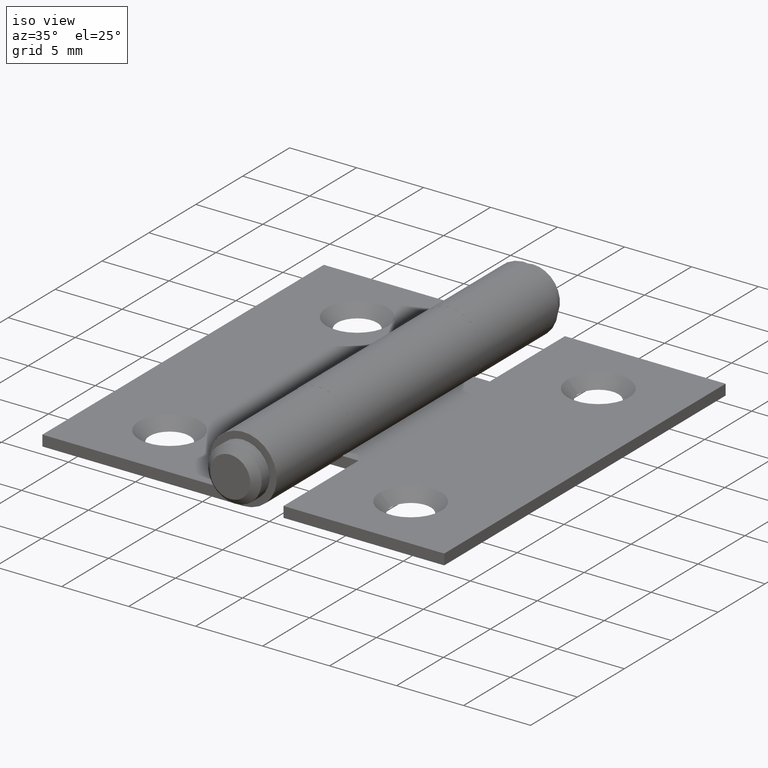
[diagram: clean part render]
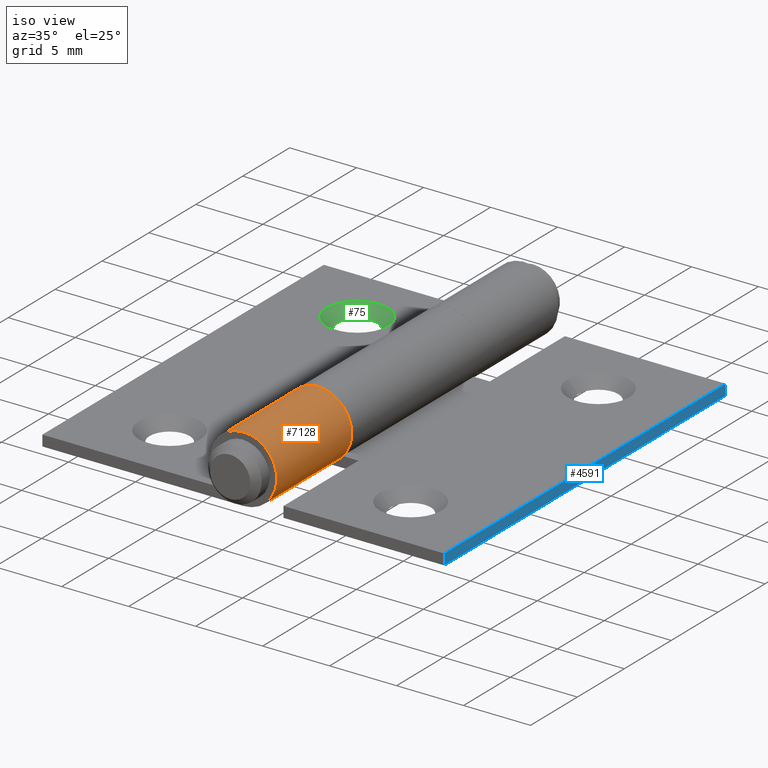
[diagram: same view with three faces highlighted in distinct colors, each labeled with its STEP entity id]
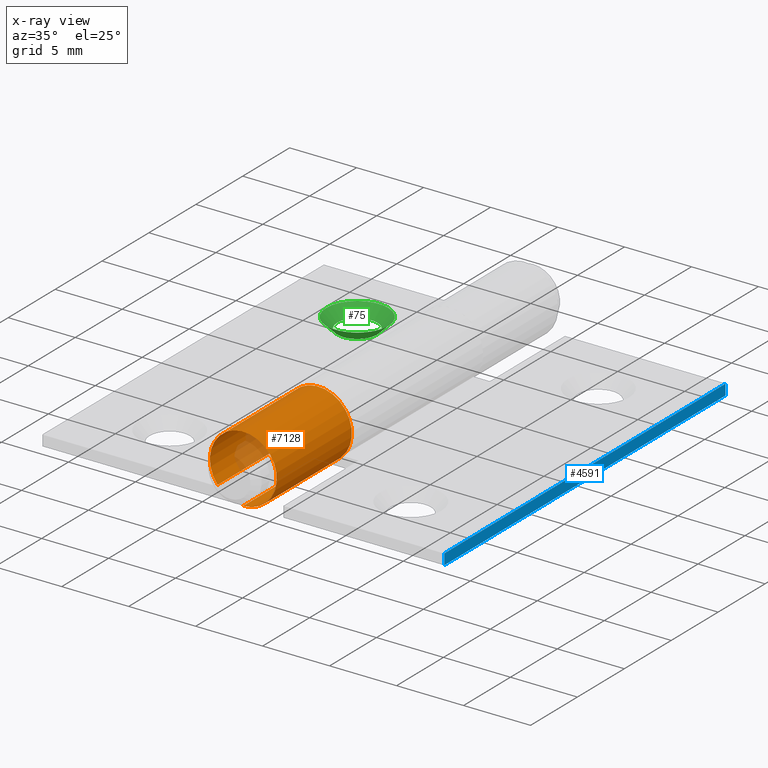
[diagram: x-ray of the same camera — body ghosted, the three highlighted faces saturated]
A machine part, iso view with three faces highlighted in distinct colors.
The next image is the same camera in x-ray (body ghosted, the three faces saturated) — at least one of them is partly hidden behind the body in this view.
Their STEP definitions:

[orange] entity #7128 — the highlighted cylindrical surface (partial cylindrical patch) has radius 2.5 mm, axis along (-0, -1, -0).
#368 = DIRECTION ( 'NONE',  ( 0.000000000000000000, 0.000000000000000000, -1.000000000000000000 ) ) ;
#475 = VERTEX_POINT ( 'NONE', #3328 ) ;
#676 = EDGE_CURVE ( 'NONE', #475, #9387, #7936, .T. ) ;
#783 = CARTESIAN_POINT ( 'NONE',  ( -4.420937271229854026, 15.00000000000000000, 0.9000000000000002442 ) ) ;
#1014 = DIRECTION ( 'NONE',  ( 0.000000000000000000, 1.000000000000000000, -0.000000000000000000 ) ) ;
#1357 = EDGE_LOOP ( 'NONE', ( #1628, #8893, #6601, #2745 ) ) ;
#1628 = ORIENTED_EDGE ( 'NONE', *, *, #9542, .F. ) ;
#2055 = AXIS2_PLACEMENT_3D ( 'NONE', #6397, #7106, #7890 ) ;
#2457 = EDGE_CURVE ( 'NONE', #3498, #475, #6518, .T. ) ;
#2741 = AXIS2_PLACEMENT_3D ( 'NONE', #5476, #1014, #6985 ) ;
#2745 = ORIENTED_EDGE ( 'NONE', *, *, #7008, .T. ) ;
#3066 = DIRECTION ( 'NONE',  ( -0.000000000000000000, -1.000000000000000000, -0.000000000000000000 ) ) ;
#3328 = CARTESIAN_POINT ( 'NONE',  ( -4.420937271229854026, -6.999999999999999112, 0.9000000000000003553 ) ) ;
#3498 = VERTEX_POINT ( 'NONE', #4521 ) ;
#3527 = CYLINDRICAL_SURFACE ( 'NONE', #2055, 2.499999999999999556 ) ;
#3739 = VECTOR ( 'NONE', #9081, 1000.000000000000000 ) ;
#3969 = VERTEX_POINT ( 'NONE', #9036 ) ;
#4521 = CARTESIAN_POINT ( 'NONE',  ( -2.499999999999999556, -7.000000000000000000, 3.252606517456513302E-16 ) ) ;
#4888 = CARTESIAN_POINT ( 'NONE',  ( -4.420937271229854026, -15.00000000000000000, 0.9000000000000002442 ) ) ;
#5242 = CARTESIAN_POINT ( 'NONE',  ( -2.500000000000000000, 15.00000000000000000, 1.084202172485504434E-16 ) ) ;
#5476 = CARTESIAN_POINT ( 'NONE',  ( -2.500000000000000000, -15.00000000000000000, 2.500000000000000000 ) ) ;
#6397 = CARTESIAN_POINT ( 'NONE',  ( -2.500000000000000000, 15.00000000000000000, 2.500000000000000000 ) ) ;
#6518 = CIRCLE ( 'NONE', #6599, 2.499999999999999556 ) ;
#6599 = AXIS2_PLACEMENT_3D ( 'NONE', #7098, #9239, #368 ) ;
#6601 = ORIENTED_EDGE ( 'NONE', *, *, #676, .T. ) ;
#6985 = DIRECTION ( 'NONE',  ( 0.000000000000000000, 0.000000000000000000, -1.000000000000000000 ) ) ;
#7008 = EDGE_CURVE ( 'NONE', #9387, #3969, #9498, .T. ) ;
#7098 = CARTESIAN_POINT ( 'NONE',  ( -2.500000000000000000, -6.999999999999999112, 2.500000000000000000 ) ) ;
#7106 = DIRECTION ( 'NONE',  ( -0.000000000000000000, -1.000000000000000000, -0.000000000000000000 ) ) ;
#7108 = LINE ( 'NONE', #5242, #8625 ) ;
#7128 = ADVANCED_FACE ( 'NONE', ( #8791 ), #3527, .T. ) ;
#7890 = DIRECTION ( 'NONE',  ( 0.000000000000000000, 0.000000000000000000, -1.000000000000000000 ) ) ;
#7936 = LINE ( 'NONE', #783, #3739 ) ;
#8625 = VECTOR ( 'NONE', #3066, 1000.000000000000000 ) ;
#8791 = FACE_OUTER_BOUND ( 'NONE', #1357, .T. ) ;
#8893 = ORIENTED_EDGE ( 'NONE', *, *, #2457, .T. ) ;
#9036 = CARTESIAN_POINT ( 'NONE',  ( -2.500000000000000000, -15.00000000000000000, 1.084202172485504434E-16 ) ) ;
#9081 = DIRECTION ( 'NONE',  ( -0.000000000000000000, -1.000000000000000000, -0.000000000000000000 ) ) ;
#9239 = DIRECTION ( 'NONE',  ( 0.000000000000000000, -1.000000000000000000, 0.000000000000000000 ) ) ;
#9387 = VERTEX_POINT ( 'NONE', #4888 ) ;
#9498 = CIRCLE ( 'NONE', #2741, 2.499999999999999556 ) ;
#9542 = EDGE_CURVE ( 'NONE', #3498, #3969, #7108, .T. ) ;

[blue] entity #4591 — the highlighted planar face has unit normal (-1, 0, 0).
#122 = CARTESIAN_POINT ( 'NONE',  ( -17.49999999999999645, 15.00000000000000000, 0.8000000000000020428 ) ) ;
#482 = CARTESIAN_POINT ( 'NONE',  ( -17.49999999999999645, 15.00000000000000000, 1.951563910473907981E-15 ) ) ;
#791 = EDGE_CURVE ( 'NONE', #3048, #6592, #7697, .T. ) ;
#1268 = DIRECTION ( 'NONE',  ( 0.000000000000000000, 0.000000000000000000, -1.000000000000000000 ) ) ;
#1419 = EDGE_CURVE ( 'NONE', #8421, #3048, #3255, .T. ) ;
#1477 = AXIS2_PLACEMENT_3D ( 'NONE', #5736, #2058, #1268 ) ;
#1518 = EDGE_LOOP ( 'NONE', ( #3321, #3870, #5622, #6862 ) ) ;
#1930 = PLANE ( 'NONE',  #1477 ) ;
#2058 = DIRECTION ( 'NONE',  ( 1.000000000000000000, -0.000000000000000000, 0.000000000000000000 ) ) ;
#2099 = VECTOR ( 'NONE', #4584, 1000.000000000000000 ) ;
#2796 = VECTOR ( 'NONE', #9177, 1000.000000000000000 ) ;
#3048 = VERTEX_POINT ( 'NONE', #122 ) ;
#3255 = LINE ( 'NONE', #7687, #2796 ) ;
#3321 = ORIENTED_EDGE ( 'NONE', *, *, #8711, .T. ) ;
#3852 = CARTESIAN_POINT ( 'NONE',  ( -17.49999999999999645, 15.00000000000000000, 0.8000000000000020428 ) ) ;
#3870 = ORIENTED_EDGE ( 'NONE', *, *, #791, .F. ) ;
#4232 = LINE ( 'NONE', #482, #8674 ) ;
#4395 = VERTEX_POINT ( 'NONE', #5539 ) ;
#4429 = VECTOR ( 'NONE', #7165, 1000.000000000000000 ) ;
#4584 = DIRECTION ( 'NONE',  ( -0.000000000000000000, -1.000000000000000000, -0.000000000000000000 ) ) ;
#4591 = ADVANCED_FACE ( 'NONE', ( #6835 ), #1930, .F. ) ;
#5539 = CARTESIAN_POINT ( 'NONE',  ( -17.49999999999999645, -15.00000000000000000, 1.951563910473907981E-15 ) ) ;
#5622 = ORIENTED_EDGE ( 'NONE', *, *, #1419, .F. ) ;
#5684 = CARTESIAN_POINT ( 'NONE',  ( -17.49999999999999645, -15.00000000000000000, 0.8000000000000020428 ) ) ;
#5736 = CARTESIAN_POINT ( 'NONE',  ( -17.49999999999999645, 15.00000000000000000, 0.8000000000000020428 ) ) ;
#6592 = VERTEX_POINT ( 'NONE', #5684 ) ;
#6687 = EDGE_CURVE ( 'NONE', #8421, #4395, #4232, .T. ) ;
#6835 = FACE_OUTER_BOUND ( 'NONE', #1518, .T. ) ;
#6862 = ORIENTED_EDGE ( 'NONE', *, *, #6687, .T. ) ;
#7165 = DIRECTION ( 'NONE',  ( -0.000000000000000000, -0.000000000000000000, 1.000000000000000000 ) ) ;
#7241 = DIRECTION ( 'NONE',  ( -0.000000000000000000, -1.000000000000000000, -0.000000000000000000 ) ) ;
#7591 = LINE ( 'NONE', #9472, #4429 ) ;
#7687 = CARTESIAN_POINT ( 'NONE',  ( -17.49999999999999645, 15.00000000000000000, 0.8000000000000020428 ) ) ;
#7697 = LINE ( 'NONE', #3852, #2099 ) ;
#8421 = VERTEX_POINT ( 'NONE', #8827 ) ;
#8674 = VECTOR ( 'NONE', #7241, 1000.000000000000000 ) ;
#8711 = EDGE_CURVE ( 'NONE', #4395, #6592, #7591, .T. ) ;
#8827 = CARTESIAN_POINT ( 'NONE',  ( -17.49999999999999645, 15.00000000000000000, 1.951563910473907981E-15 ) ) ;
#9177 = DIRECTION ( 'NONE',  ( -0.000000000000000000, -0.000000000000000000, 1.000000000000000000 ) ) ;
#9472 = CARTESIAN_POINT ( 'NONE',  ( -17.49999999999999645, -15.00000000000000000, 0.8000000000000020428 ) ) ;

[green] entity #75 — the highlighted conical surface has half-angle 45 deg.
#75 = ADVANCED_FACE ( 'NONE', ( #1649, #5727 ), #3500, .F. ) ;
#110 = CARTESIAN_POINT ( 'NONE',  ( -11.50000000000000533, 9.999999999999998224, 0.8000000000000012657 ) ) ;
#135 = CARTESIAN_POINT ( 'NONE',  ( -13.80000000000000604, 9.999999999999998224, 0.8000000000000015987 ) ) ;
#1356 = DIRECTION ( 'NONE',  ( 1.000000000000000000, 0.000000000000000000, 0.000000000000000000 ) ) ;
#1390 = VERTEX_POINT ( 'NONE', #135 ) ;
#1601 = CARTESIAN_POINT ( 'NONE',  ( -11.50000000000000533, 9.999999999999998224, 1.084202172485504434E-16 ) ) ;
#1649 = FACE_OUTER_BOUND ( 'NONE', #3893, .T. ) ;
#1916 = CIRCLE ( 'NONE', #6622, 2.300000000000001599 ) ;
#2364 = AXIS2_PLACEMENT_3D ( 'NONE', #5724, #9558, #1356 ) ;
#3500 = CONICAL_SURFACE ( 'NONE', #2364, 1.499999999999999556, 0.7853981633974482790 ) ;
#3625 = CIRCLE ( 'NONE', #7896, 1.499999999999999556 ) ;
#3893 = EDGE_LOOP ( 'NONE', ( #4784 ) ) ;
#4563 = ORIENTED_EDGE ( 'NONE', *, *, #9090, .F. ) ;
#4784 = ORIENTED_EDGE ( 'NONE', *, *, #5472, .F. ) ;
#5334 = CARTESIAN_POINT ( 'NONE',  ( -10.00000000000000533, 9.999999999999998224, 1.084202172485504434E-16 ) ) ;
#5338 = DIRECTION ( 'NONE',  ( -1.000000000000000000, 0.000000000000000000, 1.414176746720222167E-16 ) ) ;
#5472 = EDGE_CURVE ( 'NONE', #1390, #1390, #1916, .T. ) ;
#5724 = CARTESIAN_POINT ( 'NONE',  ( -11.50000000000000533, 9.999999999999998224, -1.713039432527096217E-15 ) ) ;
#5727 = FACE_BOUND ( 'NONE', #5983, .T. ) ;
#5975 = DIRECTION ( 'NONE',  ( 0.000000000000000000, 0.000000000000000000, 1.000000000000000000 ) ) ;
#5983 = EDGE_LOOP ( 'NONE', ( #4563 ) ) ;
#6622 = AXIS2_PLACEMENT_3D ( 'NONE', #110, #9015, #5338 ) ;
#7561 = DIRECTION ( 'NONE',  ( 1.000000000000000000, 0.000000000000000000, 0.000000000000000000 ) ) ;
#7896 = AXIS2_PLACEMENT_3D ( 'NONE', #1601, #5975, #7561 ) ;
#9015 = DIRECTION ( 'NONE',  ( -1.228762462150238769E-16, 0.000000000000000000, -1.000000000000000000 ) ) ;
#9090 = EDGE_CURVE ( 'NONE', #9103, #9103, #3625, .T. ) ;
#9103 = VERTEX_POINT ( 'NONE', #5334 ) ;
#9558 = DIRECTION ( 'NONE',  ( 0.000000000000000000, 0.000000000000000000, 1.000000000000000000 ) ) ;